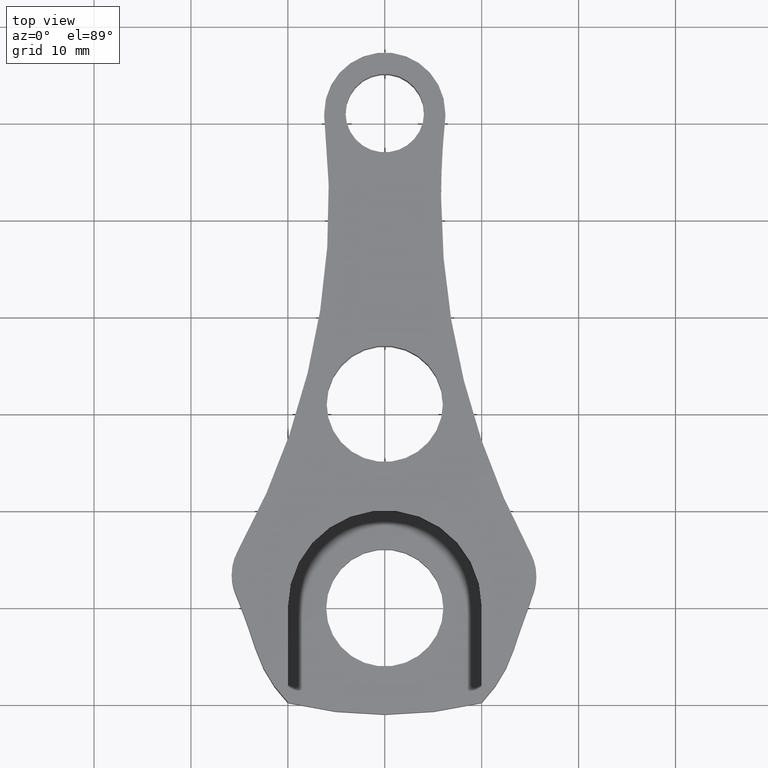
[diagram: clean part render]
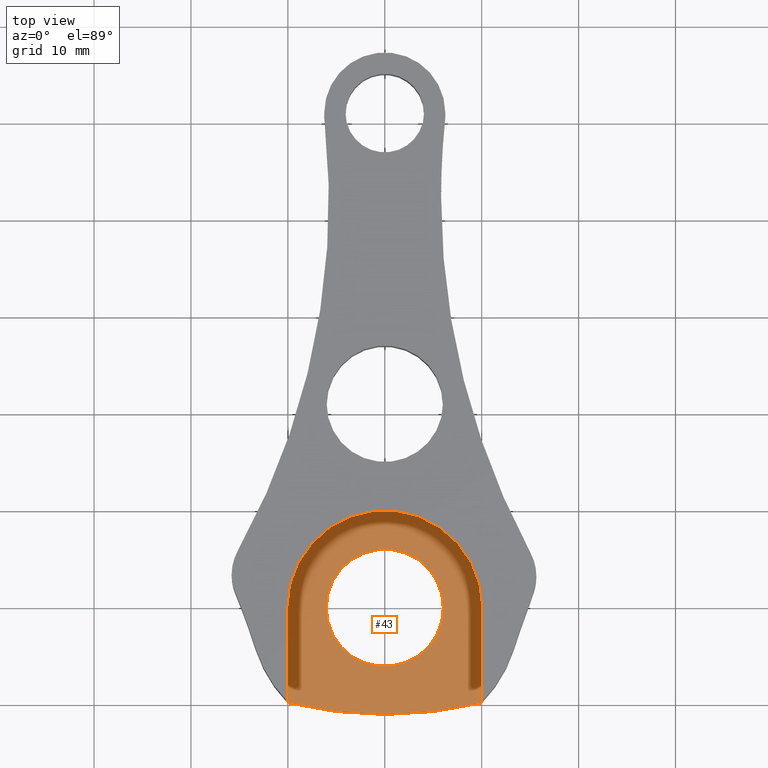
[diagram: same view with one face highlighted and labeled with its STEP entity id]
A machine part, top view. The second image highlights one B-rep face of the part: STEP entity #43.
In plain terms, the highlighted planar face has unit normal (-0, -0, 1).
Its self-contained STEP definition (entity closure, byte-faithful):
#16 = CARTESIAN_POINT ( 'NONE',  ( 9.999999999999994700, 0.0000000000000000000, 0.0000000000000000000 ) ) ;
#21 = DIRECTION ( 'NONE',  ( 1.000000000000000000, -1.885191645205621400E-061, 2.627434620609032000E-046 ) ) ;
#34 = DIRECTION ( 'NONE',  ( 1.000000000000000000, -1.885191645205621400E-061, 2.627434620609032000E-046 ) ) ;
#43 = ADVANCED_FACE ( 'NONE', ( #708, #538 ), #230, .T. ) ;
#54 = CIRCLE ( 'NONE', #366, 6.049999999999999800 ) ;
#60 = CIRCLE ( 'NONE', #503, 42.19693845669914400 ) ;
#93 = CARTESIAN_POINT ( 'NONE',  ( 6.049999999999999800, 7.409113134841486500E-016, -1.589597945468464200E-045 ) ) ;
#127 = CARTESIAN_POINT ( 'NONE',  ( -10.00000000000002300, -9.797958971132711500, 0.0000000000000000000 ) ) ;
#134 = VERTEX_POINT ( 'NONE', #93 ) ;
#149 = DIRECTION ( 'NONE',  ( -2.627434620609032000E-046, 1.313717310304516000E-046, -1.000000000000000000 ) ) ;
#156 = DIRECTION ( 'NONE',  ( -2.627434620609032000E-046, -1.313717310304516000E-046, 1.000000000000000000 ) ) ;
#179 = DIRECTION ( 'NONE',  ( -3.363939994101538300E-015, -1.000000000000000000, 1.313717310304516000E-046 ) ) ;
#183 = CARTESIAN_POINT ( 'NONE',  ( 0.0000000000000000000, 31.19693845669914400, 0.0000000000000000000 ) ) ;
#187 = EDGE_CURVE ( 'NONE', #790, #134, #394, .T. ) ;
#204 = EDGE_CURVE ( 'NONE', #614, #293, #60, .T. ) ;
#230 = PLANE ( 'NONE',  #286 ) ;
#240 = CIRCLE ( 'NONE', #330, 10.00000000000000000 ) ;
#251 = ORIENTED_EDGE ( 'NONE', *, *, #204, .F. ) ;
#270 = CARTESIAN_POINT ( 'NONE',  ( 9.999999999999968000, -9.797958971132725700, 0.0000000000000000000 ) ) ;
#286 = AXIS2_PLACEMENT_3D ( 'NONE', #645, #156, #324 ) ;
#287 = CARTESIAN_POINT ( 'NONE',  ( 0.0000000000000000000, 0.0000000000000000000, 0.0000000000000000000 ) ) ;
#288 = VECTOR ( 'NONE', #410, 1000.000000000000000 ) ;
#293 = VERTEX_POINT ( 'NONE', #127 ) ;
#315 = EDGE_CURVE ( 'NONE', #293, #671, #862, .T. ) ;
#324 = DIRECTION ( 'NONE',  ( 1.000000000000000000, -1.885191645205621400E-061, 2.627434620609032000E-046 ) ) ;
#330 = AXIS2_PLACEMENT_3D ( 'NONE', #579, #544, #21 ) ;
#343 = ORIENTED_EDGE ( 'NONE', *, *, #534, .F. ) ;
#349 = DIRECTION ( 'NONE',  ( 1.000000000000000000, 0.0000000000000000000, 2.627434620609031600E-046 ) ) ;
#366 = AXIS2_PLACEMENT_3D ( 'NONE', #518, #789, #832 ) ;
#380 = CARTESIAN_POINT ( 'NONE',  ( -6.049999999999999800, 1.065093167492957700E-044, 1.589597945468464200E-045 ) ) ;
#394 = CIRCLE ( 'NONE', #662, 6.049999999999999800 ) ;
#410 = DIRECTION ( 'NONE',  ( 1.770494733737654000E-015, 1.000000000000000000, -1.313717310304516000E-046 ) ) ;
#426 = EDGE_CURVE ( 'NONE', #627, #614, #650, .T. ) ;
#432 = CARTESIAN_POINT ( 'NONE',  ( -9.999999999999994700, 0.0000000000000000000, 0.0000000000000000000 ) ) ;
#463 = CARTESIAN_POINT ( 'NONE',  ( 9.999999999999968000, -9.797958971132725700, 0.0000000000000000000 ) ) ;
#486 = ORIENTED_EDGE ( 'NONE', *, *, #426, .F. ) ;
#503 = AXIS2_PLACEMENT_3D ( 'NONE', #183, #149, #349 ) ;
#518 = CARTESIAN_POINT ( 'NONE',  ( 0.0000000000000000000, 0.0000000000000000000, 0.0000000000000000000 ) ) ;
#534 = EDGE_CURVE ( 'NONE', #671, #627, #240, .T. ) ;
#538 = FACE_OUTER_BOUND ( 'NONE', #548, .T. ) ;
#544 = DIRECTION ( 'NONE',  ( -2.627434620609032000E-046, 1.313717310304516000E-046, -1.000000000000000000 ) ) ;
#548 = EDGE_LOOP ( 'NONE', ( #343, #755, #251, #486 ) ) ;
#579 = CARTESIAN_POINT ( 'NONE',  ( 0.0000000000000000000, 0.0000000000000000000, 0.0000000000000000000 ) ) ;
#606 = EDGE_CURVE ( 'NONE', #134, #790, #54, .T. ) ;
#614 = VERTEX_POINT ( 'NONE', #463 ) ;
#627 = VERTEX_POINT ( 'NONE', #16 ) ;
#645 = CARTESIAN_POINT ( 'NONE',  ( 0.0000000000000000000, 0.0000000000000000000, 0.0000000000000000000 ) ) ;
#650 = LINE ( 'NONE', #270, #680 ) ;
#662 = AXIS2_PLACEMENT_3D ( 'NONE', #287, #940, #34 ) ;
#671 = VERTEX_POINT ( 'NONE', #921 ) ;
#680 = VECTOR ( 'NONE', #179, 1000.000000000000000 ) ;
#708 = FACE_BOUND ( 'NONE', #731, .T. ) ;
#731 = EDGE_LOOP ( 'NONE', ( #815, #925 ) ) ;
#755 = ORIENTED_EDGE ( 'NONE', *, *, #315, .F. ) ;
#789 = DIRECTION ( 'NONE',  ( 2.627434620609032000E-046, -1.313717310304516000E-046, 1.000000000000000000 ) ) ;
#790 = VERTEX_POINT ( 'NONE', #380 ) ;
#815 = ORIENTED_EDGE ( 'NONE', *, *, #187, .F. ) ;
#832 = DIRECTION ( 'NONE',  ( 1.000000000000000000, -1.885191645205621400E-061, 2.627434620609032000E-046 ) ) ;
#862 = LINE ( 'NONE', #432, #288 ) ;
#921 = CARTESIAN_POINT ( 'NONE',  ( -9.999999999999994700, 0.0000000000000000000, 0.0000000000000000000 ) ) ;
#925 = ORIENTED_EDGE ( 'NONE', *, *, #606, .F. ) ;
#940 = DIRECTION ( 'NONE',  ( 2.627434620609032000E-046, -1.313717310304516000E-046, 1.000000000000000000 ) ) ;